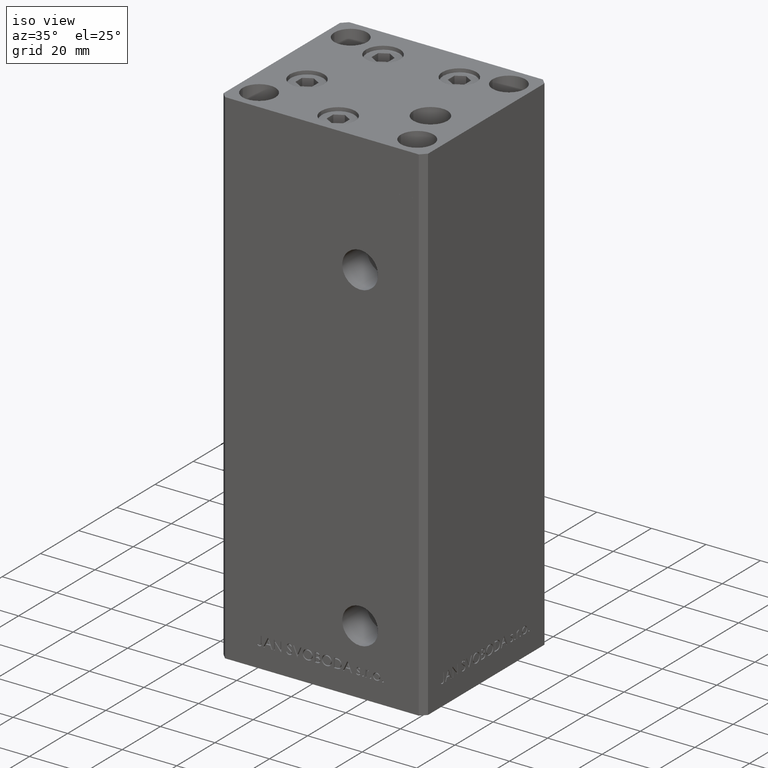
[diagram: clean part render]
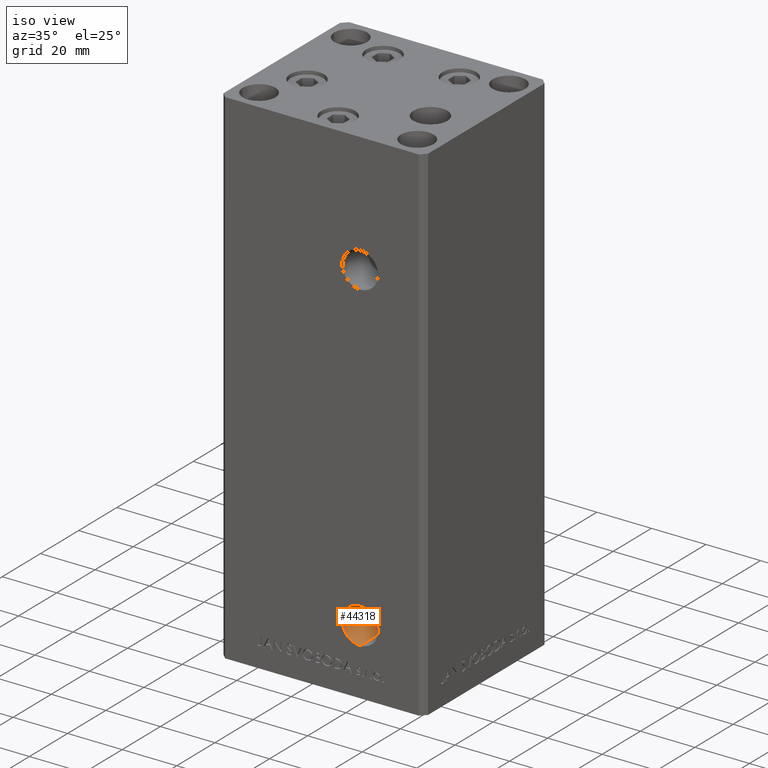
[diagram: same view with one face highlighted and labeled with its STEP entity id]
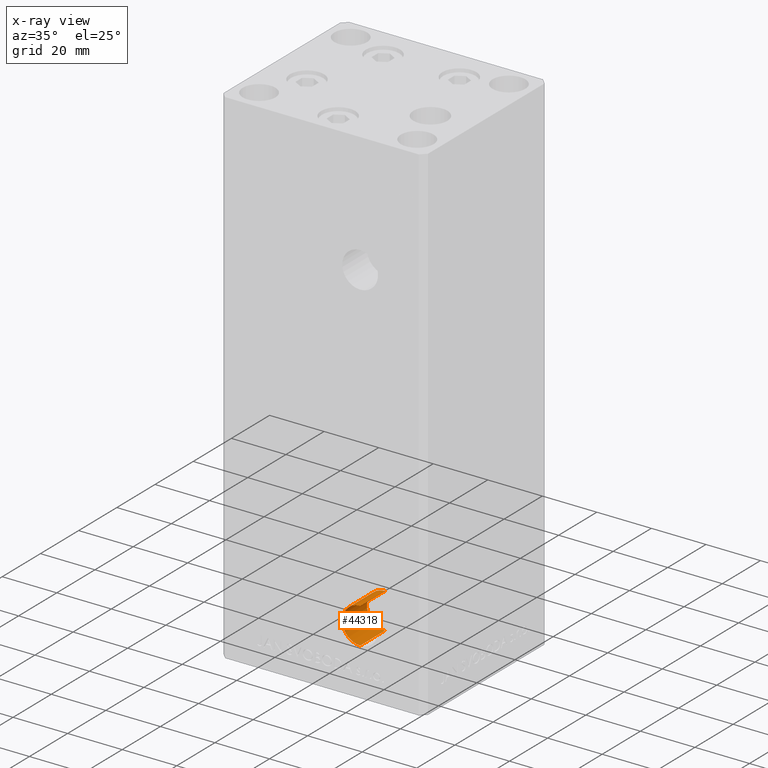
[diagram: x-ray of the same camera — body ghosted, the highlighted face saturated]
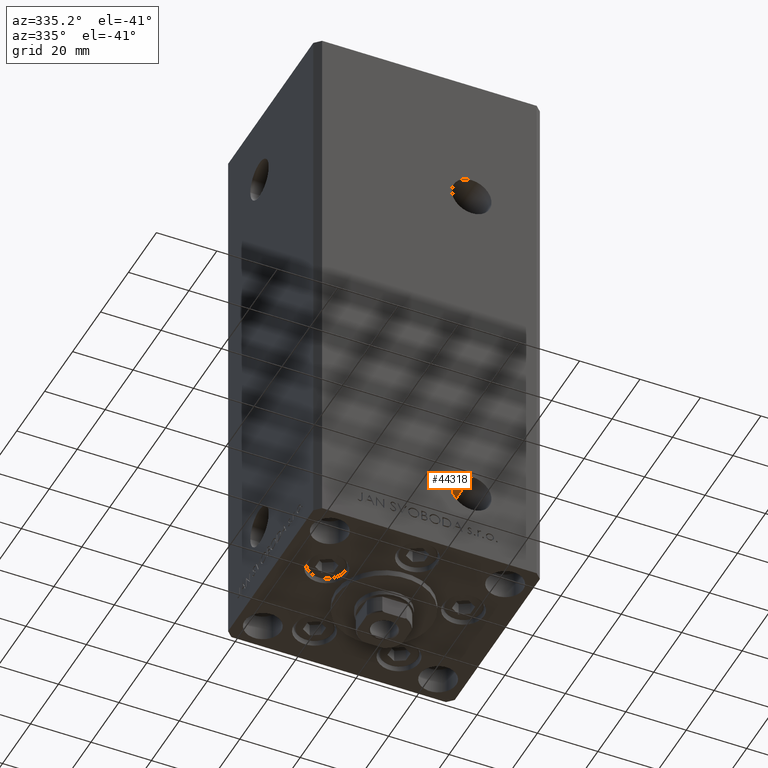
[diagram: same view with one face highlighted and labeled with its STEP entity id]
A machine part, iso view. The second image highlights one B-rep face of the part: STEP entity #44318.
The next image is the same camera in x-ray: the body ghosted, the highlighted face saturated — about 0% of this face is hidden behind the body in this view.
A second angle (auxiliary view) of the same face is appended — the face is thin or edge-on in the first view.
In plain terms, the highlighted cylindrical surface (edge-blend (fillet) strip) has radius 6.58 mm, axis along (-0, -1, -0).
Its self-contained STEP definition (entity closure, byte-faithful):
#2203 = DIRECTION ( 'NONE',  ( 0.000000000000000000, 0.000000000000000000, -1.000000000000000000 ) ) ;
#5486 = FACE_OUTER_BOUND ( 'NONE', #42791, .T. ) ;
#7710 = VERTEX_POINT ( 'NONE', #15145 ) ;
#9812 = EDGE_CURVE ( 'NONE', #7710, #14529, #45747, .T. ) ;
#10991 = DIRECTION ( 'NONE',  ( -0.000000000000000000, -1.000000000000000000, -0.000000000000000000 ) ) ;
#12233 = AXIS2_PLACEMENT_3D ( 'NONE', #36870, #10991, #2203 ) ;
#12288 = DIRECTION ( 'NONE',  ( 0.000000000000000000, 0.000000000000000000, -1.000000000000000000 ) ) ;
#12820 = EDGE_CURVE ( 'NONE', #49657, #41458, #31412, .T. ) ;
#12927 = ORIENTED_EDGE ( 'NONE', *, *, #12820, .T. ) ;
#13135 = DIRECTION ( 'NONE',  ( -0.000000000000000000, -1.000000000000000000, -0.000000000000000000 ) ) ;
#14179 = ORIENTED_EDGE ( 'NONE', *, *, #39208, .F. ) ;
#14529 = VERTEX_POINT ( 'NONE', #49063 ) ;
#15145 = CARTESIAN_POINT ( 'NONE',  ( 13.99999999999999112, -19.50000000000000355, 15.58000000000000718 ) ) ;
#19445 = CARTESIAN_POINT ( 'NONE',  ( 13.99999999999999112, -32.50000000000000000, 15.58000000000000718 ) ) ;
#19923 = LINE ( 'NONE', #35766, #35373 ) ;
#20790 = CYLINDRICAL_SURFACE ( 'NONE', #12233, 6.579999999999998295 ) ;
#22021 = DIRECTION ( 'NONE',  ( -0.000000000000000000, -1.000000000000000000, -0.000000000000000000 ) ) ;
#27852 = DIRECTION ( 'NONE',  ( 0.000000000000000000, -1.000000000000000000, 0.000000000000000000 ) ) ;
#29320 = ORIENTED_EDGE ( 'NONE', *, *, #9812, .F. ) ;
#30479 = AXIS2_PLACEMENT_3D ( 'NONE', #32685, #49687, #45690 ) ;
#31412 = CIRCLE ( 'NONE', #42639, 6.579999999999998295 ) ;
#32605 = ORIENTED_EDGE ( 'NONE', *, *, #40951, .T. ) ;
#32685 = CARTESIAN_POINT ( 'NONE',  ( 13.99999999999999112, -19.50000000000000355, 9.000000000000007105 ) ) ;
#35373 = VECTOR ( 'NONE', #13135, 1000.000000000000000 ) ;
#35590 = CARTESIAN_POINT ( 'NONE',  ( 13.99999999999999112, -32.50000000000000000, 2.420000000000009699 ) ) ;
#35766 = CARTESIAN_POINT ( 'NONE',  ( 13.99999999999999112, -19.50000000000000355, 15.58000000000000718 ) ) ;
#36870 = CARTESIAN_POINT ( 'NONE',  ( 13.99999999999999112, -19.50000000000000355, 9.000000000000007105 ) ) ;
#39208 = EDGE_CURVE ( 'NONE', #14529, #41458, #48399, .T. ) ;
#40951 = EDGE_CURVE ( 'NONE', #7710, #49657, #19923, .T. ) ;
#41458 = VERTEX_POINT ( 'NONE', #35590 ) ;
#42639 = AXIS2_PLACEMENT_3D ( 'NONE', #47210, #27852, #12288 ) ;
#42791 = EDGE_LOOP ( 'NONE', ( #29320, #32605, #12927, #14179 ) ) ;
#44318 = ADVANCED_FACE ( 'NONE', ( #5486 ), #20790, .F. ) ;
#44889 = CARTESIAN_POINT ( 'NONE',  ( 13.99999999999999112, -19.50000000000000355, 2.420000000000009699 ) ) ;
#45690 = DIRECTION ( 'NONE',  ( 0.000000000000000000, 0.000000000000000000, -1.000000000000000000 ) ) ;
#45747 = CIRCLE ( 'NONE', #30479, 6.579999999999998295 ) ;
#47210 = CARTESIAN_POINT ( 'NONE',  ( 13.99999999999999112, -32.50000000000000000, 9.000000000000007105 ) ) ;
#47396 = VECTOR ( 'NONE', #22021, 1000.000000000000000 ) ;
#48399 = LINE ( 'NONE', #44889, #47396 ) ;
#49063 = CARTESIAN_POINT ( 'NONE',  ( 13.99999999999999112, -19.50000000000000355, 2.420000000000009699 ) ) ;
#49657 = VERTEX_POINT ( 'NONE', #19445 ) ;
#49687 = DIRECTION ( 'NONE',  ( 0.000000000000000000, -1.000000000000000000, 0.000000000000000000 ) ) ;